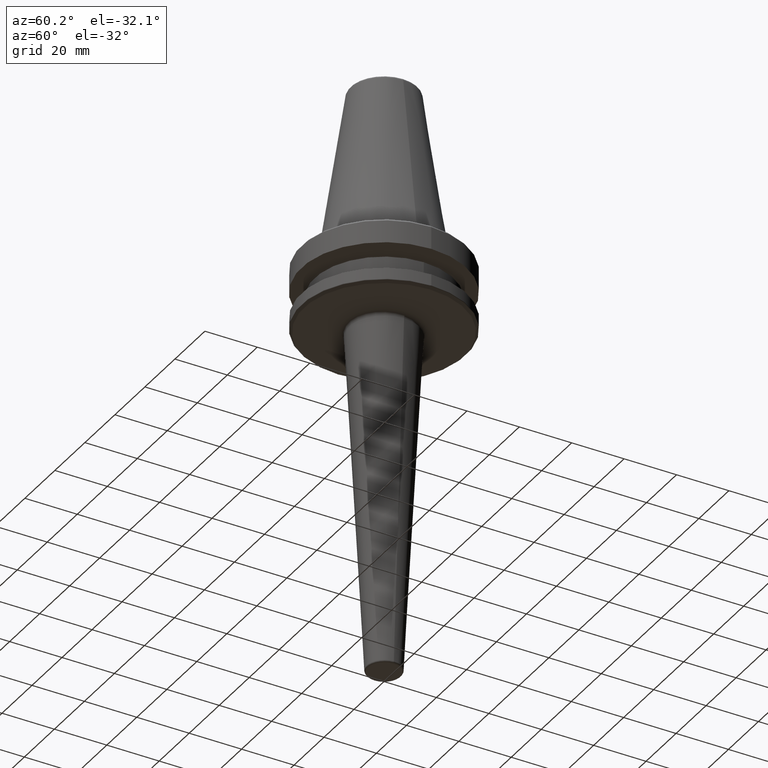
[diagram: clean part render]
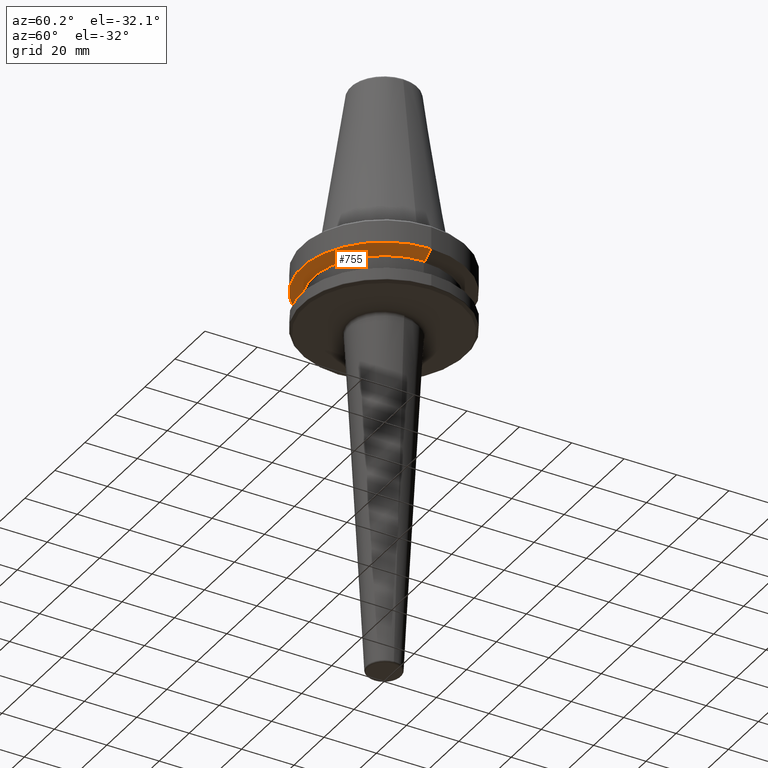
[diagram: same view with one face highlighted and labeled with its STEP entity id]
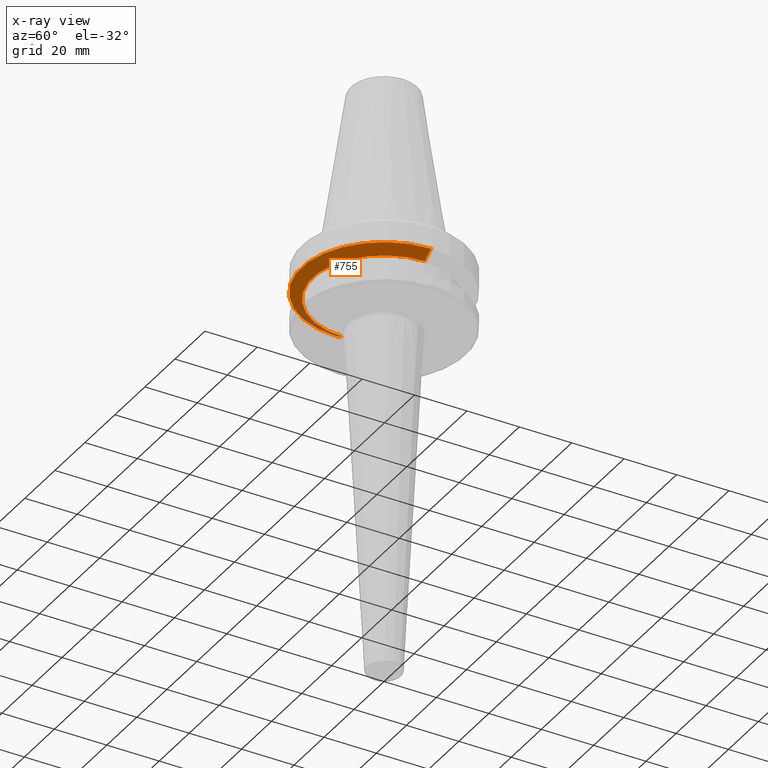
[diagram: x-ray of the same camera — body ghosted, the highlighted face saturated]
A machine part, auxiliary view. The second image highlights one B-rep face of the part: STEP entity #755.
The next image is the same camera in x-ray: the body ghosted, the highlighted face saturated — about 7% of this face is hidden behind the body in this view.
In plain terms, the highlighted conical surface has half-angle 60 deg.
Its self-contained STEP definition (entity closure, byte-faithful):
#40 = ORIENTED_EDGE ( 'NONE', *, *, #141, .T. ) ;
#68 = CARTESIAN_POINT ( 'NONE',  ( 27.17012701892217300, 0.0000000000000000000, -14.10000000000000500 ) ) ;
#99 = AXIS2_PLACEMENT_3D ( 'NONE', #795, #1004, #392 ) ;
#106 = CARTESIAN_POINT ( 'NONE',  ( 31.50000000000000000, 0.0000000000000000000, -11.60014666881784400 ) ) ;
#136 = CARTESIAN_POINT ( 'NONE',  ( -27.17012701892217300, 3.592509162964584100E-015, -14.10000000000000500 ) ) ;
#141 = EDGE_CURVE ( 'NONE', #168, #644, #960, .T. ) ;
#168 = VERTEX_POINT ( 'NONE', #68 ) ;
#223 = EDGE_CURVE ( 'NONE', #424, #245, #720, .T. ) ;
#245 = VERTEX_POINT ( 'NONE', #764 ) ;
#278 = CIRCLE ( 'NONE', #1009, 31.50000000000000000 ) ;
#317 = CIRCLE ( 'NONE', #99, 27.17012701892217300 ) ;
#332 = DIRECTION ( 'NONE',  ( -1.000000000000000000, 0.0000000000000000000, 0.0000000000000000000 ) ) ;
#352 = CONICAL_SURFACE ( 'NONE', #390, 31.50000000000000000, 1.047197551196599600 ) ;
#374 = FACE_OUTER_BOUND ( 'NONE', #525, .T. ) ;
#390 = AXIS2_PLACEMENT_3D ( 'NONE', #1094, #571, #684 ) ;
#392 = DIRECTION ( 'NONE',  ( -1.000000000000000000, 0.0000000000000000000, 0.0000000000000000000 ) ) ;
#424 = VERTEX_POINT ( 'NONE', #136 ) ;
#508 = DIRECTION ( 'NONE',  ( -0.8660254037844396000, 1.060575238724908000E-016, 0.4999999999999983900 ) ) ;
#525 = EDGE_LOOP ( 'NONE', ( #1202, #1153, #40, #584 ) ) ;
#571 = DIRECTION ( 'NONE',  ( 0.0000000000000000000, 0.0000000000000000000, 1.000000000000000000 ) ) ;
#584 = ORIENTED_EDGE ( 'NONE', *, *, #979, .T. ) ;
#644 = VERTEX_POINT ( 'NONE', #1037 ) ;
#650 = VECTOR ( 'NONE', #688, 1000.000000000000000 ) ;
#684 = DIRECTION ( 'NONE',  ( 1.000000000000000000, 0.0000000000000000000, 0.0000000000000000000 ) ) ;
#688 = DIRECTION ( 'NONE',  ( 0.8660254037844396000, 0.0000000000000000000, 0.4999999999999983900 ) ) ;
#720 = LINE ( 'NONE', #743, #915 ) ;
#743 = CARTESIAN_POINT ( 'NONE',  ( -31.50000000000000000, 3.857637417314162700E-015, -11.60014666881784400 ) ) ;
#755 = ADVANCED_FACE ( 'NONE', ( #374 ), #352, .T. ) ;
#764 = CARTESIAN_POINT ( 'NONE',  ( -31.50000000000000000, 3.857637417314162700E-015, -11.60014666881784400 ) ) ;
#795 = CARTESIAN_POINT ( 'NONE',  ( 0.0000000000000000000, 0.0000000000000000000, -14.10000000000000500 ) ) ;
#840 = CARTESIAN_POINT ( 'NONE',  ( 0.0000000000000000000, 0.0000000000000000000, -11.60014666881784400 ) ) ;
#915 = VECTOR ( 'NONE', #508, 1000.000000000000000 ) ;
#919 = EDGE_CURVE ( 'NONE', #168, #424, #317, .T. ) ;
#960 = LINE ( 'NONE', #106, #650 ) ;
#979 = EDGE_CURVE ( 'NONE', #644, #245, #278, .T. ) ;
#1004 = DIRECTION ( 'NONE',  ( -0.0000000000000000000, -0.0000000000000000000, -1.000000000000000000 ) ) ;
#1009 = AXIS2_PLACEMENT_3D ( 'NONE', #840, #1048, #332 ) ;
#1037 = CARTESIAN_POINT ( 'NONE',  ( 31.50000000000000000, 0.0000000000000000000, -11.60014666881784400 ) ) ;
#1048 = DIRECTION ( 'NONE',  ( -0.0000000000000000000, -0.0000000000000000000, -1.000000000000000000 ) ) ;
#1094 = CARTESIAN_POINT ( 'NONE',  ( 0.0000000000000000000, 0.0000000000000000000, -11.60014666881784400 ) ) ;
#1153 = ORIENTED_EDGE ( 'NONE', *, *, #919, .F. ) ;
#1202 = ORIENTED_EDGE ( 'NONE', *, *, #223, .F. ) ;